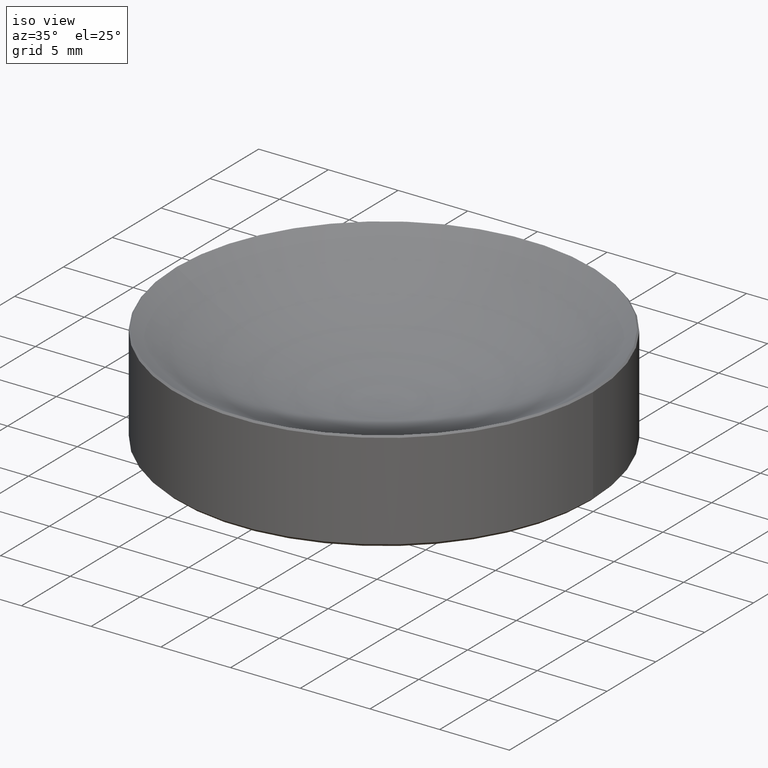
[diagram: clean part render]
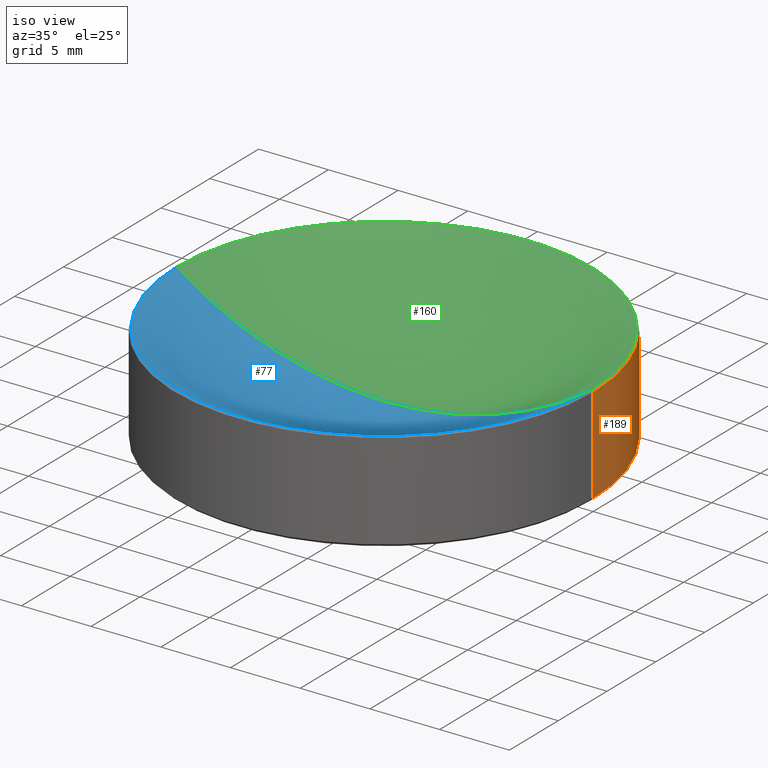
[diagram: same view with three faces highlighted in distinct colors, each labeled with its STEP entity id]
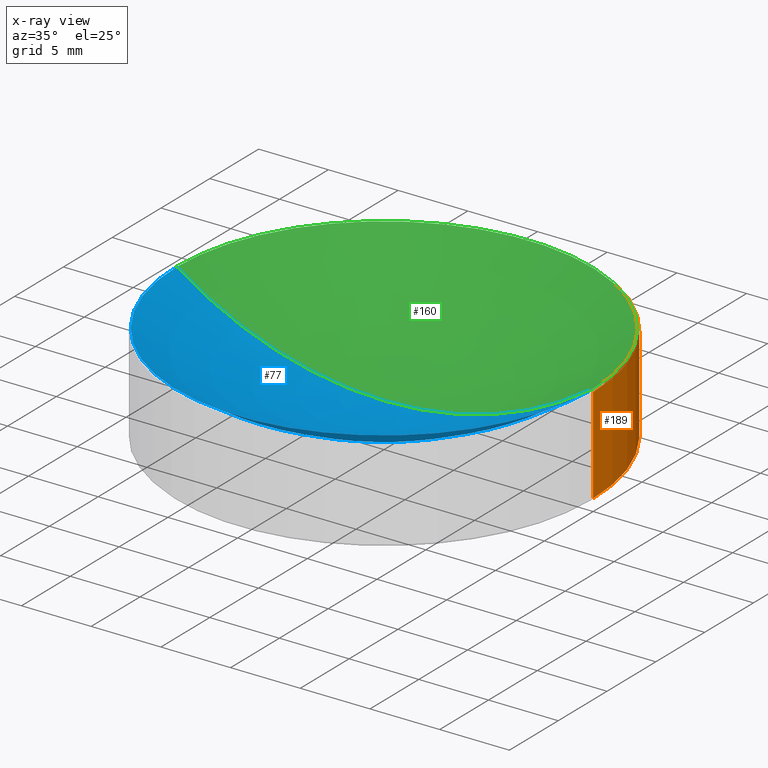
[diagram: x-ray of the same camera — body ghosted, the three highlighted faces saturated]
A machine part, iso view with three faces highlighted in distinct colors.
The next image is the same camera in x-ray (body ghosted, the three faces saturated) — at least one of them is partly hidden behind the body in this view.
Their STEP definitions:

[orange] entity #189 — the highlighted cylindrical surface (partial cylindrical patch) has radius 15 mm, axis along (-0, -0, 1).
#12 = ORIENTED_EDGE ( 'NONE', *, *, #171, .T. ) ;
#15 = VECTOR ( 'NONE', #142, 1000.000000000000000 ) ;
#19 = AXIS2_PLACEMENT_3D ( 'NONE', #60, #184, #41 ) ;
#20 = FACE_OUTER_BOUND ( 'NONE', #156, .T. ) ;
#25 = VECTOR ( 'NONE', #129, 1000.000000000000000 ) ;
#27 = LINE ( 'NONE', #252, #25 ) ;
#38 = CARTESIAN_POINT ( 'NONE',  ( 15.00000000000000000, 0.000000000000000000, 7.100000000000005862 ) ) ;
#41 = DIRECTION ( 'NONE',  ( 1.000000000000000000, 0.000000000000000000, 0.000000000000000000 ) ) ;
#58 = CIRCLE ( 'NONE', #211, 15.00000000000000000 ) ;
#60 = CARTESIAN_POINT ( 'NONE',  ( 0.000000000000000000, 0.000000000000000000, 0.2000000000000013989 ) ) ;
#61 = CYLINDRICAL_SURFACE ( 'NONE', #107, 15.00000000000000000 ) ;
#84 = CARTESIAN_POINT ( 'NONE',  ( 0.000000000000000000, 0.000000000000000000, 2.500000000000000000 ) ) ;
#86 = EDGE_CURVE ( 'NONE', #177, #159, #165, .T. ) ;
#102 = DIRECTION ( 'NONE',  ( 0.000000000000000000, 0.000000000000000000, -1.000000000000000000 ) ) ;
#105 = DIRECTION ( 'NONE',  ( -0.000000000000000000, -0.000000000000000000, 1.000000000000000000 ) ) ;
#106 = CARTESIAN_POINT ( 'NONE',  ( 0.000000000000000000, 0.000000000000000000, 7.100000000000005862 ) ) ;
#107 = AXIS2_PLACEMENT_3D ( 'NONE', #84, #105, #163 ) ;
#113 = CARTESIAN_POINT ( 'NONE',  ( -15.00000000000000000, 1.836970198721029589E-15, 0.2000000000000013989 ) ) ;
#129 = DIRECTION ( 'NONE',  ( -0.000000000000000000, -0.000000000000000000, 1.000000000000000000 ) ) ;
#131 = CARTESIAN_POINT ( 'NONE',  ( -15.00000000000000000, 1.836970198721029589E-15, 7.100000000000005862 ) ) ;
#132 = EDGE_CURVE ( 'NONE', #177, #220, #200, .T. ) ;
#141 = CARTESIAN_POINT ( 'NONE',  ( 15.00000000000000000, 0.000000000000000000, 2.500000000000000000 ) ) ;
#142 = DIRECTION ( 'NONE',  ( -0.000000000000000000, -0.000000000000000000, 1.000000000000000000 ) ) ;
#156 = EDGE_LOOP ( 'NONE', ( #158, #259, #12, #212 ) ) ;
#158 = ORIENTED_EDGE ( 'NONE', *, *, #132, .T. ) ;
#159 = VERTEX_POINT ( 'NONE', #38 ) ;
#163 = DIRECTION ( 'NONE',  ( 1.000000000000000000, 0.000000000000000000, 0.000000000000000000 ) ) ;
#165 = LINE ( 'NONE', #141, #15 ) ;
#171 = EDGE_CURVE ( 'NONE', #243, #159, #58, .T. ) ;
#177 = VERTEX_POINT ( 'NONE', #266 ) ;
#184 = DIRECTION ( 'NONE',  ( -0.000000000000000000, -0.000000000000000000, 1.000000000000000000 ) ) ;
#185 = DIRECTION ( 'NONE',  ( -1.000000000000000000, 0.000000000000000000, 0.000000000000000000 ) ) ;
#189 = ADVANCED_FACE ( 'NONE', ( #20 ), #61, .T. ) ;
#200 = CIRCLE ( 'NONE', #19, 15.00000000000000000 ) ;
#211 = AXIS2_PLACEMENT_3D ( 'NONE', #106, #102, #185 ) ;
#212 = ORIENTED_EDGE ( 'NONE', *, *, #86, .F. ) ;
#220 = VERTEX_POINT ( 'NONE', #113 ) ;
#243 = VERTEX_POINT ( 'NONE', #131 ) ;
#250 = EDGE_CURVE ( 'NONE', #220, #243, #27, .T. ) ;
#252 = CARTESIAN_POINT ( 'NONE',  ( -15.00000000000000000, 1.836970198721029589E-15, 2.500000000000000000 ) ) ;
#259 = ORIENTED_EDGE ( 'NONE', *, *, #250, .T. ) ;
#266 = CARTESIAN_POINT ( 'NONE',  ( 15.00000000000000000, 0.000000000000000000, 0.2000000000000013989 ) ) ;

[blue] entity #77 — the highlighted toroidal blend (fillet) surface has major radius 0.0008 mm and minor (blend) radius 25.84 mm.
#1 = CARTESIAN_POINT ( 'NONE',  ( -0.0007999960371929404346, 0.000000000000000000, 28.33999998761621697 ) ) ;
#14 = DIRECTION ( 'NONE',  ( 0.000000000000000000, -1.000000000000000000, 0.000000000000000000 ) ) ;
#21 = DIRECTION ( 'NONE',  ( 1.000000000000000000, 0.000000000000000000, 0.000000000000000000 ) ) ;
#23 = CIRCLE ( 'NONE', #83, 14.88295791347168162 ) ;
#33 = ORIENTED_EDGE ( 'NONE', *, *, #213, .F. ) ;
#35 = CARTESIAN_POINT ( 'NONE',  ( -14.88295791347168162, 1.822636677057786445E-15, 7.217042086528313583 ) ) ;
#37 = CARTESIAN_POINT ( 'NONE',  ( 0.000000000000000000, 0.000000000000000000, 28.33999998761621697 ) ) ;
#44 = TOROIDAL_SURFACE ( 'NONE', #230, -0.0007999960371929404346, 25.83999999999999631 ) ;
#45 = AXIS2_PLACEMENT_3D ( 'NONE', #1, #14, #99 ) ;
#49 = CIRCLE ( 'NONE', #149, 25.83999999999999631 ) ;
#57 = DIRECTION ( 'NONE',  ( -0.000000000000000000, -0.000000000000000000, 1.000000000000000000 ) ) ;
#63 = CARTESIAN_POINT ( 'NONE',  ( 0.000000000000000000, 0.000000000000000000, 2.500000000000000000 ) ) ;
#74 = VERTEX_POINT ( 'NONE', #35 ) ;
#77 = ADVANCED_FACE ( 'NONE', ( #100 ), #44, .F. ) ;
#78 = DIRECTION ( 'NONE',  ( 1.224646799147353207E-16, 1.000000000000000000, 0.000000000000000000 ) ) ;
#83 = AXIS2_PLACEMENT_3D ( 'NONE', #190, #57, #223 ) ;
#94 = ORIENTED_EDGE ( 'NONE', *, *, #217, .T. ) ;
#97 = VERTEX_POINT ( 'NONE', #63 ) ;
#99 = DIRECTION ( 'NONE',  ( 0.000000000000000000, 0.000000000000000000, -1.000000000000000000 ) ) ;
#100 = FACE_OUTER_BOUND ( 'NONE', #221, .T. ) ;
#112 = ORIENTED_EDGE ( 'NONE', *, *, #121, .T. ) ;
#121 = EDGE_CURVE ( 'NONE', #74, #197, #23, .T. ) ;
#122 = DIRECTION ( 'NONE',  ( -0.000000000000000000, -0.000000000000000000, 1.000000000000000000 ) ) ;
#149 = AXIS2_PLACEMENT_3D ( 'NONE', #261, #78, #242 ) ;
#190 = CARTESIAN_POINT ( 'NONE',  ( 0.000000000000000000, 0.000000000000000000, 7.217042086528315359 ) ) ;
#197 = VERTEX_POINT ( 'NONE', #247 ) ;
#213 = EDGE_CURVE ( 'NONE', #97, #197, #264, .T. ) ;
#217 = EDGE_CURVE ( 'NONE', #97, #74, #49, .T. ) ;
#221 = EDGE_LOOP ( 'NONE', ( #33, #94, #112 ) ) ;
#223 = DIRECTION ( 'NONE',  ( 1.000000000000000000, 0.000000000000000000, 0.000000000000000000 ) ) ;
#230 = AXIS2_PLACEMENT_3D ( 'NONE', #37, #122, #21 ) ;
#242 = DIRECTION ( 'NONE',  ( -1.000000000000000000, 1.224646799147352961E-16, 0.000000000000000000 ) ) ;
#247 = CARTESIAN_POINT ( 'NONE',  ( 14.88295791347168162, 0.000000000000000000, 7.217042086528313583 ) ) ;
#261 = CARTESIAN_POINT ( 'NONE',  ( 0.0007999960371929404346, -9.797125862789014462E-20, 28.33999998761621697 ) ) ;
#264 = CIRCLE ( 'NONE', #45, 25.83999999999999631 ) ;

[green] entity #160 — the highlighted toroidal blend (fillet) surface has major radius 0.0008 mm and minor (blend) radius 25.84 mm.
#1 = CARTESIAN_POINT ( 'NONE',  ( -0.0007999960371929404346, 0.000000000000000000, 28.33999998761621697 ) ) ;
#14 = DIRECTION ( 'NONE',  ( 0.000000000000000000, -1.000000000000000000, 0.000000000000000000 ) ) ;
#35 = CARTESIAN_POINT ( 'NONE',  ( -14.88295791347168162, 1.822636677057786445E-15, 7.217042086528313583 ) ) ;
#43 = DIRECTION ( 'NONE',  ( -0.000000000000000000, -0.000000000000000000, 1.000000000000000000 ) ) ;
#45 = AXIS2_PLACEMENT_3D ( 'NONE', #1, #14, #99 ) ;
#49 = CIRCLE ( 'NONE', #149, 25.83999999999999631 ) ;
#63 = CARTESIAN_POINT ( 'NONE',  ( 0.000000000000000000, 0.000000000000000000, 2.500000000000000000 ) ) ;
#74 = VERTEX_POINT ( 'NONE', #35 ) ;
#78 = DIRECTION ( 'NONE',  ( 1.224646799147353207E-16, 1.000000000000000000, 0.000000000000000000 ) ) ;
#82 = AXIS2_PLACEMENT_3D ( 'NONE', #92, #95, #191 ) ;
#92 = CARTESIAN_POINT ( 'NONE',  ( 0.000000000000000000, 0.000000000000000000, 7.217042086528315359 ) ) ;
#95 = DIRECTION ( 'NONE',  ( -0.000000000000000000, -0.000000000000000000, 1.000000000000000000 ) ) ;
#97 = VERTEX_POINT ( 'NONE', #63 ) ;
#99 = DIRECTION ( 'NONE',  ( 0.000000000000000000, 0.000000000000000000, -1.000000000000000000 ) ) ;
#114 = ORIENTED_EDGE ( 'NONE', *, *, #227, .T. ) ;
#149 = AXIS2_PLACEMENT_3D ( 'NONE', #261, #78, #242 ) ;
#160 = ADVANCED_FACE ( 'NONE', ( #209 ), #251, .F. ) ;
#187 = DIRECTION ( 'NONE',  ( 1.000000000000000000, 0.000000000000000000, 0.000000000000000000 ) ) ;
#191 = DIRECTION ( 'NONE',  ( 1.000000000000000000, 0.000000000000000000, 0.000000000000000000 ) ) ;
#194 = CIRCLE ( 'NONE', #82, 14.88295791347168162 ) ;
#195 = ORIENTED_EDGE ( 'NONE', *, *, #213, .T. ) ;
#197 = VERTEX_POINT ( 'NONE', #247 ) ;
#205 = CARTESIAN_POINT ( 'NONE',  ( 0.000000000000000000, 0.000000000000000000, 28.33999998761621697 ) ) ;
#209 = FACE_OUTER_BOUND ( 'NONE', #255, .T. ) ;
#213 = EDGE_CURVE ( 'NONE', #97, #197, #264, .T. ) ;
#217 = EDGE_CURVE ( 'NONE', #97, #74, #49, .T. ) ;
#222 = AXIS2_PLACEMENT_3D ( 'NONE', #205, #43, #187 ) ;
#227 = EDGE_CURVE ( 'NONE', #197, #74, #194, .T. ) ;
#237 = ORIENTED_EDGE ( 'NONE', *, *, #217, .F. ) ;
#242 = DIRECTION ( 'NONE',  ( -1.000000000000000000, 1.224646799147352961E-16, 0.000000000000000000 ) ) ;
#247 = CARTESIAN_POINT ( 'NONE',  ( 14.88295791347168162, 0.000000000000000000, 7.217042086528313583 ) ) ;
#251 = TOROIDAL_SURFACE ( 'NONE', #222, -0.0007999960371929404346, 25.83999999999999631 ) ;
#255 = EDGE_LOOP ( 'NONE', ( #237, #195, #114 ) ) ;
#261 = CARTESIAN_POINT ( 'NONE',  ( 0.0007999960371929404346, -9.797125862789014462E-20, 28.33999998761621697 ) ) ;
#264 = CIRCLE ( 'NONE', #45, 25.83999999999999631 ) ;